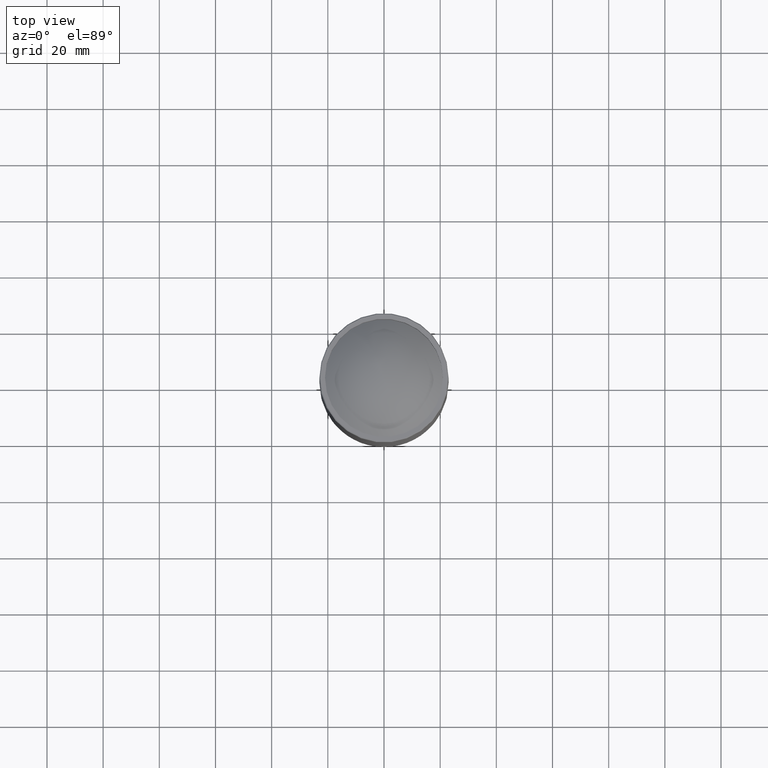
[diagram: clean part render]
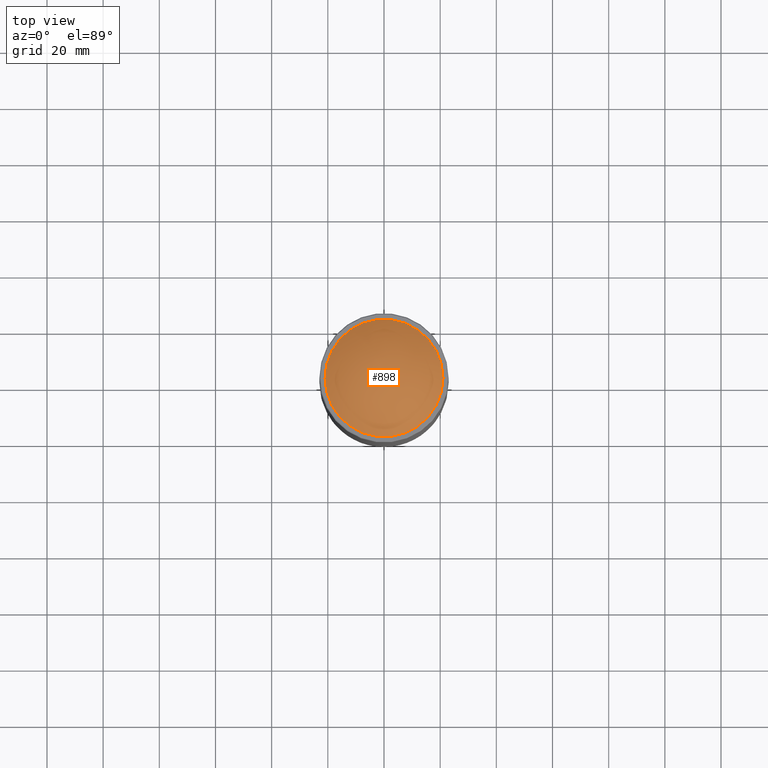
[diagram: same view with one face highlighted and labeled with its STEP entity id]
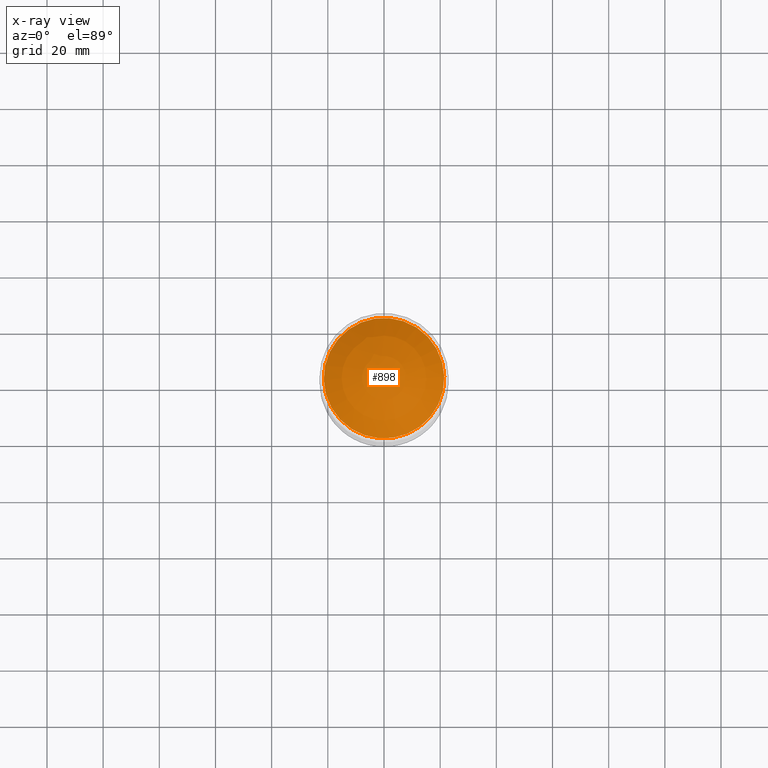
[diagram: x-ray of the same camera — body ghosted, the highlighted face saturated]
A machine part, top view. The second image highlights one B-rep face of the part: STEP entity #898.
The next image is the same camera in x-ray: the body ghosted, the highlighted face saturated — about 0% of this face is hidden behind the body in this view.
In plain terms, the highlighted spherical surface has radius 31.2095 mm.
Its self-contained STEP definition (entity closure, byte-faithful):
#71 = CARTESIAN_POINT ( 'NONE',  ( -5.551115123125782702E-14, 6.938893903907228378E-15, -416.0000000000000568 ) ) ;
#79 = FACE_OUTER_BOUND ( 'NONE', #452, .T. ) ;
#172 = VERTEX_POINT ( 'NONE', #467 ) ;
#214 = DIRECTION ( 'NONE',  ( -0.3830490080632378835, 0.9237280213470681067, 0.000000000000000000 ) ) ;
#226 = DIRECTION ( 'NONE',  ( 4.665676044949140993E-17, 1.934749774458438248E-17, 1.000000000000000000 ) ) ;
#241 = CIRCLE ( 'NONE', #366, 21.45211006975307555 ) ;
#361 = DIRECTION ( 'NONE',  ( -1.232595164407830946E-32, -1.318609258053555361E-16, -1.000000000000000000 ) ) ;
#366 = AXIS2_PLACEMENT_3D ( 'NONE', #71, #361, #667 ) ;
#402 = ORIENTED_EDGE ( 'NONE', *, *, #519, .F. ) ;
#452 = EDGE_LOOP ( 'NONE', ( #402 ) ) ;
#467 = CARTESIAN_POINT ( 'NONE',  ( 8.217209483082257293, -19.81591518845251798, -416.0000000000000568 ) ) ;
#511 = CARTESIAN_POINT ( 'NONE',  ( -5.551115123125782702E-14, 1.734723475976807094E-15, -438.6680567275546991 ) ) ;
#519 = EDGE_CURVE ( 'NONE', #172, #172, #241, .T. ) ;
#667 = DIRECTION ( 'NONE',  ( 0.3830490080632379390, -0.9237280213470682178, 0.000000000000000000 ) ) ;
#834 = AXIS2_PLACEMENT_3D ( 'NONE', #511, #226, #214 ) ;
#884 = SPHERICAL_SURFACE ( 'NONE', #834, 31.20951493132240273 ) ;
#898 = ADVANCED_FACE ( 'NONE', ( #79 ), #884, .T. ) ;